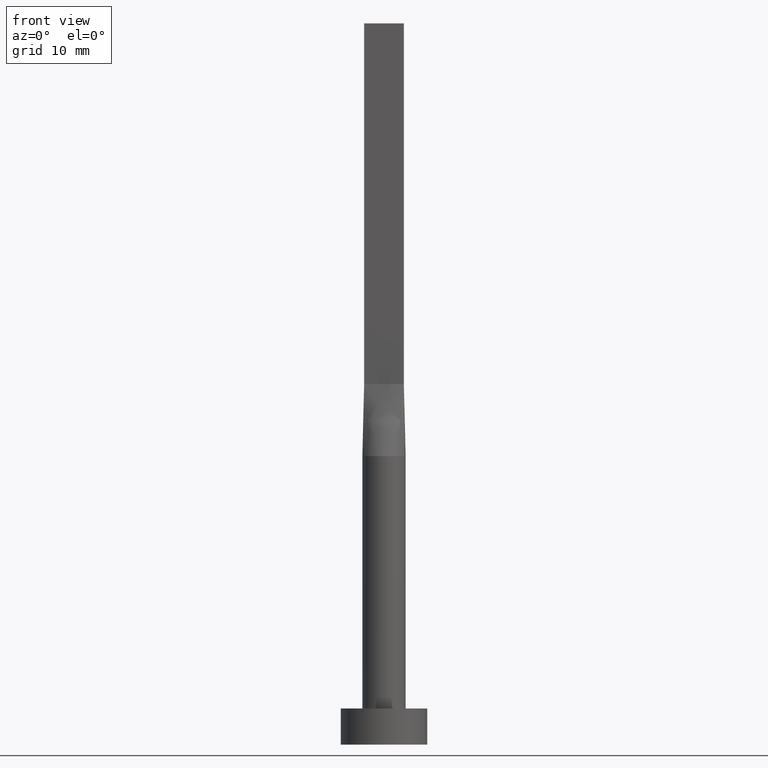
[diagram: clean part render]
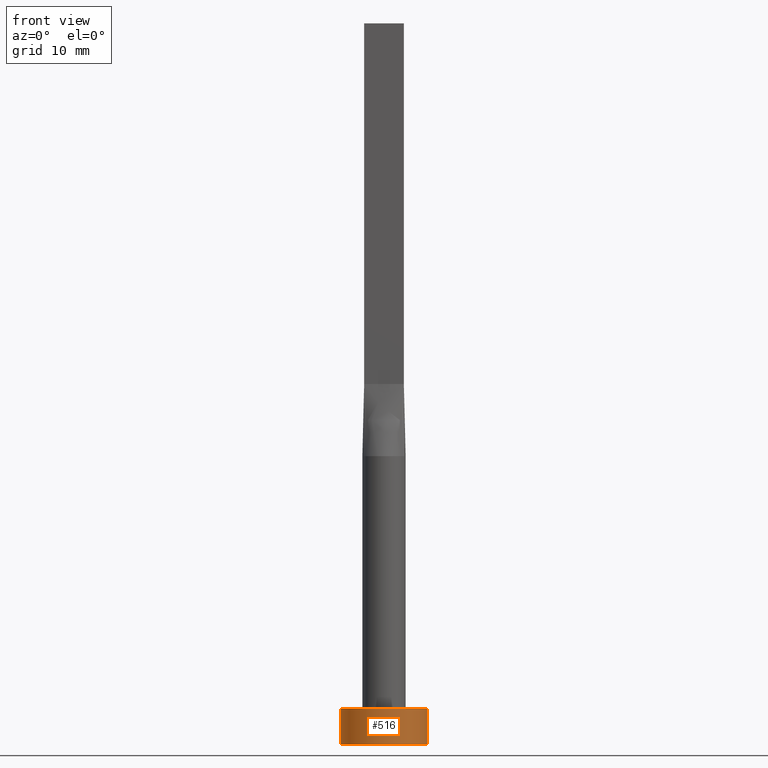
[diagram: same view with one face highlighted and labeled with its STEP entity id]
A machine part, front view. The second image highlights one B-rep face of the part: STEP entity #516.
In plain terms, the highlighted cylindrical surface (partial cylindrical patch) has radius 6 mm, axis along (-0, -0, -1).
Its self-contained STEP definition (entity closure, byte-faithful):
#14 = LINE ( 'NONE', #274, #545 ) ;
#40 = LINE ( 'NONE', #312, #331 ) ;
#44 = VERTEX_POINT ( 'NONE', #407 ) ;
#50 = EDGE_CURVE ( 'NONE', #223, #44, #40, .T. ) ;
#90 = ORIENTED_EDGE ( 'NONE', *, *, #293, .F. ) ;
#92 = ORIENTED_EDGE ( 'NONE', *, *, #50, .T. ) ;
#100 = EDGE_CURVE ( 'NONE', #549, #218, #14, .T. ) ;
#105 = CARTESIAN_POINT ( 'NONE',  ( 6.000000000000000888, 7.347880794884120722E-16, 0.000000000000000000 ) ) ;
#112 = DIRECTION ( 'NONE',  ( 1.000000000000000000, 0.000000000000000000, 0.000000000000000000 ) ) ;
#116 = DIRECTION ( 'NONE',  ( 1.000000000000000000, 0.000000000000000000, 0.000000000000000000 ) ) ;
#123 = CARTESIAN_POINT ( 'NONE',  ( 0.000000000000000000, 0.000000000000000000, 0.000000000000000000 ) ) ;
#125 = AXIS2_PLACEMENT_3D ( 'NONE', #304, #489, #112 ) ;
#137 = EDGE_LOOP ( 'NONE', ( #335, #90, #92, #557 ) ) ;
#155 = CIRCLE ( 'NONE', #499, 6.000000000000000888 ) ;
#162 = DIRECTION ( 'NONE',  ( 0.000000000000000000, 0.000000000000000000, 1.000000000000000000 ) ) ;
#210 = DIRECTION ( 'NONE',  ( -0.000000000000000000, -0.000000000000000000, -1.000000000000000000 ) ) ;
#217 = DIRECTION ( 'NONE',  ( -0.000000000000000000, -0.000000000000000000, -1.000000000000000000 ) ) ;
#218 = VERTEX_POINT ( 'NONE', #105 ) ;
#223 = VERTEX_POINT ( 'NONE', #470 ) ;
#274 = CARTESIAN_POINT ( 'NONE',  ( 6.000000000000000888, 7.347880794884120722E-16, 5.000000000000000000 ) ) ;
#279 = EDGE_CURVE ( 'NONE', #44, #218, #155, .T. ) ;
#293 = EDGE_CURVE ( 'NONE', #223, #549, #484, .T. ) ;
#304 = CARTESIAN_POINT ( 'NONE',  ( 0.000000000000000000, 0.000000000000000000, 5.000000000000000000 ) ) ;
#312 = CARTESIAN_POINT ( 'NONE',  ( -6.000000000000000888, 0.000000000000000000, 5.000000000000000000 ) ) ;
#322 = DIRECTION ( 'NONE',  ( -0.000000000000000000, -0.000000000000000000, -1.000000000000000000 ) ) ;
#331 = VECTOR ( 'NONE', #322, 1000.000000000000000 ) ;
#335 = ORIENTED_EDGE ( 'NONE', *, *, #100, .F. ) ;
#361 = CYLINDRICAL_SURFACE ( 'NONE', #567, 6.000000000000000888 ) ;
#366 = CARTESIAN_POINT ( 'NONE',  ( 6.000000000000000888, 7.347880794884120722E-16, 5.000000000000000000 ) ) ;
#403 = DIRECTION ( 'NONE',  ( -1.000000000000000000, 0.000000000000000000, 0.000000000000000000 ) ) ;
#407 = CARTESIAN_POINT ( 'NONE',  ( -6.000000000000000888, 0.000000000000000000, 0.000000000000000000 ) ) ;
#444 = FACE_OUTER_BOUND ( 'NONE', #137, .T. ) ;
#470 = CARTESIAN_POINT ( 'NONE',  ( -6.000000000000000888, 0.000000000000000000, 5.000000000000000000 ) ) ;
#484 = CIRCLE ( 'NONE', #125, 6.000000000000000888 ) ;
#489 = DIRECTION ( 'NONE',  ( 0.000000000000000000, 0.000000000000000000, 1.000000000000000000 ) ) ;
#499 = AXIS2_PLACEMENT_3D ( 'NONE', #123, #162, #116 ) ;
#516 = ADVANCED_FACE ( 'NONE', ( #444 ), #361, .T. ) ;
#544 = CARTESIAN_POINT ( 'NONE',  ( 0.000000000000000000, 0.000000000000000000, 5.000000000000000000 ) ) ;
#545 = VECTOR ( 'NONE', #217, 1000.000000000000000 ) ;
#549 = VERTEX_POINT ( 'NONE', #366 ) ;
#557 = ORIENTED_EDGE ( 'NONE', *, *, #279, .T. ) ;
#567 = AXIS2_PLACEMENT_3D ( 'NONE', #544, #210, #403 ) ;